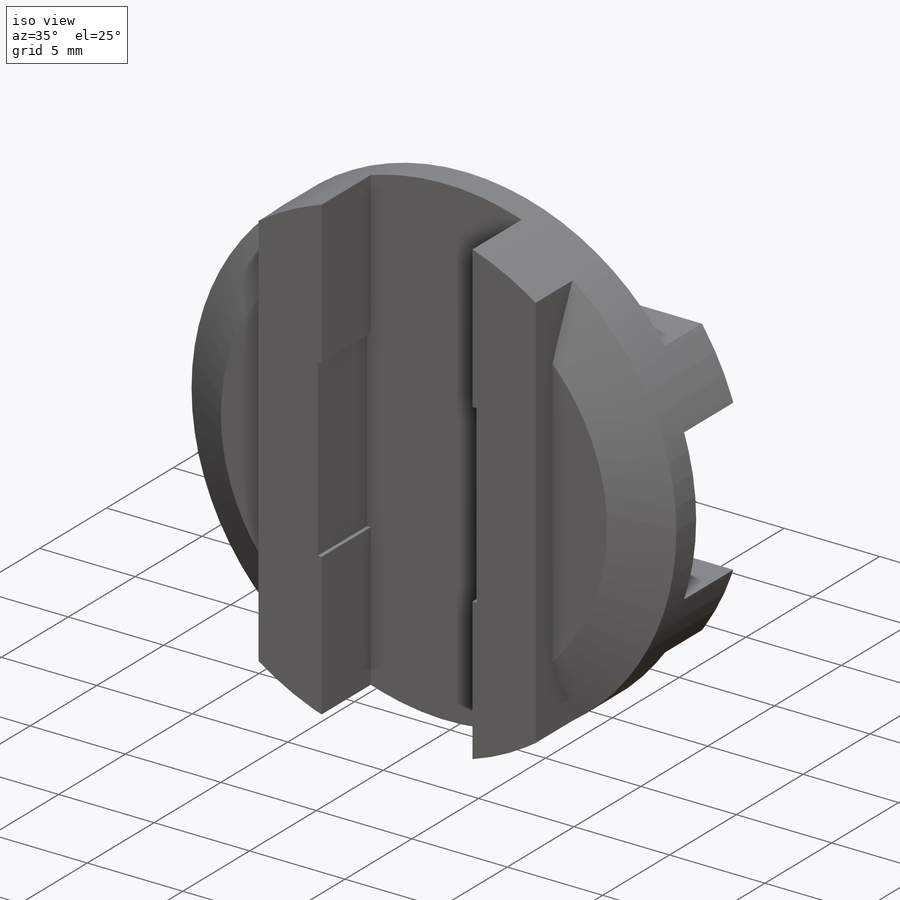
[diagram: iso view]
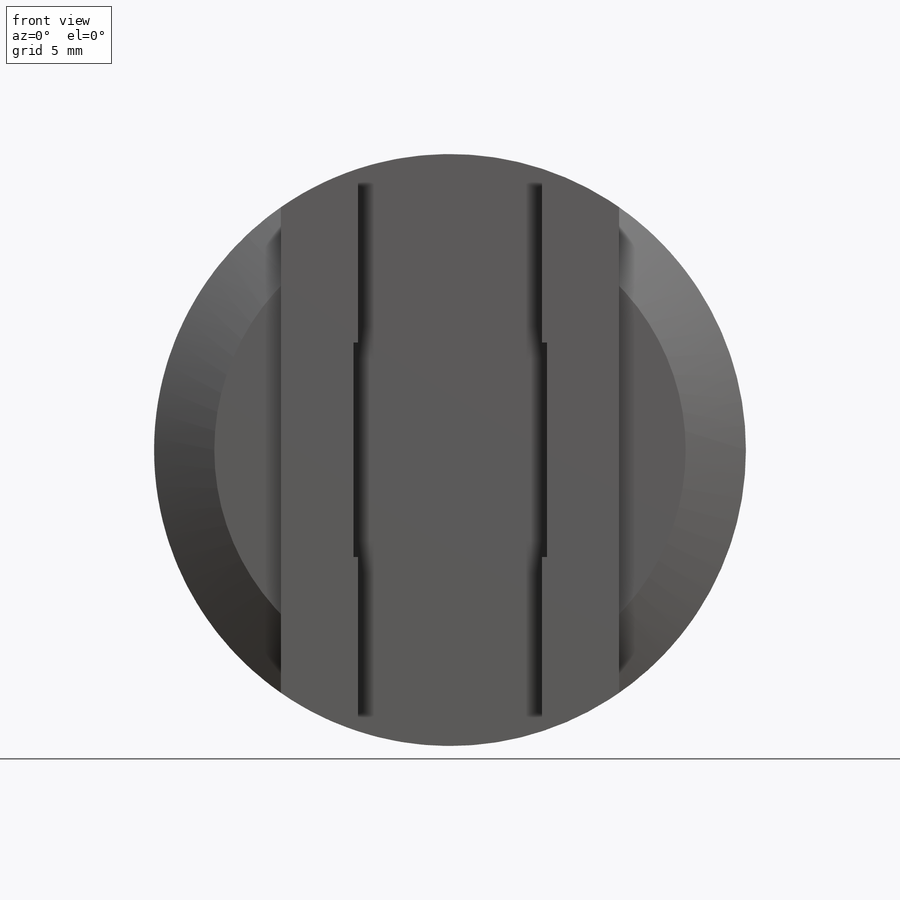
[diagram: front view]
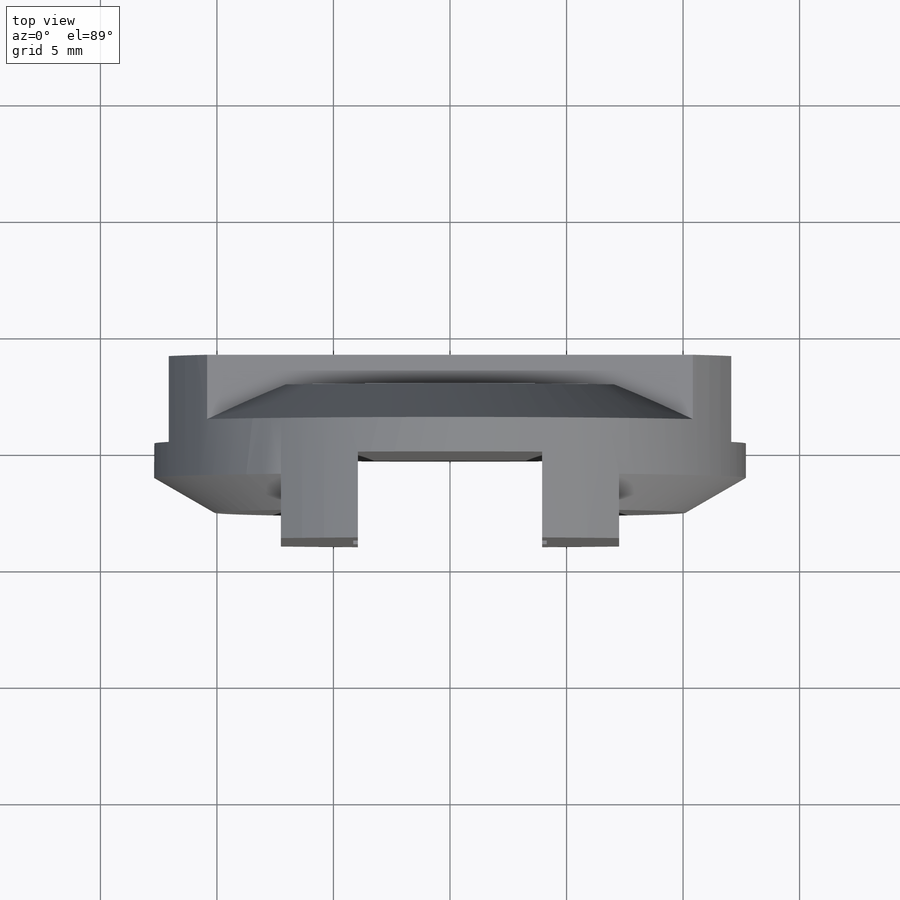
[diagram: top view]
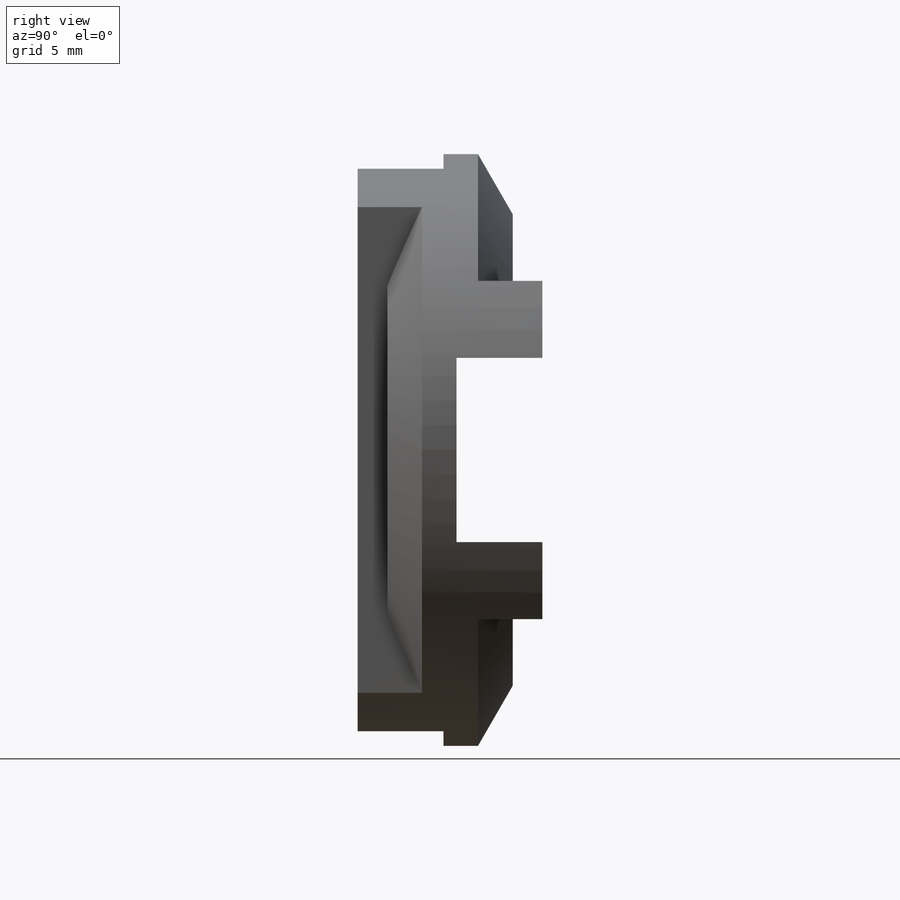
[diagram: right view]
SOLIDWORKS PART (.sldprt)
format: sldprt  version: not decoded by parser v0  size: 355,328 bytes
history: native  units: mm
features: sketch x8, cut_extrude x6, material x1, extrude x1, chamfer x1 (+15 scaffold rows collapsed; 1 parser-record rows omitted)
feature tree (33):
  scaffold x15  (default folders/planes/origin — collapsed)
  material  "Material <not specified>"
  sketch  "Sketch1"  dims[c1.OD=~84.534375mm c1.Shaft Dia=25.4mm c2.OD=25.4mm]
  extrude  "Boss-Extrude1"  Depth=7.9248mm Thickness=7.9248mm
  sketch  "Sketch2"  dims[Tooth gap=7.9121mm Tooth thickness=2.54mm]
  cut_extrude  "Cut-Extrude1"  Depth=3.683mm Tooth depth=3.683mm
  sketch  "Sketch3"
  cut_extrude  "Cut-Extrude2"  Depth=3.683mm
  parser-record x1  (decoder bookkeeping rows leaked as tree rows — omitted from the tree; the rows remain in map.json)
  sketch  "Sketch4"  dims[Tooth thickness=3.302mm D1=~5.44195mm]
  cut_extrude  "Cut-Extrude3"  Depth=1.27mm Tooth depth 2=1.27mm
  sketch  "Sketch5"
  cut_extrude  "Cut-Extrude4"  Depth=1.27mm
  chamfer  "Chamfer1"  Distance=2.584926mm Angle=30deg
  sketch  "Sketch6"  dims[D1=~8.307705mm D2=9.2075mm]
  cut_extrude  "Cut-Extrude5"  [1 undecoded]
  sketch  "Sketch7"
  cut_extrude  "Cut-Extrude6"  [1 undecoded]
  sketch  "Sketch8"
decode coverage: 10 of 16 modeling features carry decoded parameters
note: ~ marks probable driven/reference dimensions
note: 2 parameter values undecoded
note: suppression state not decoded; provenance and decode notes live in map.json
